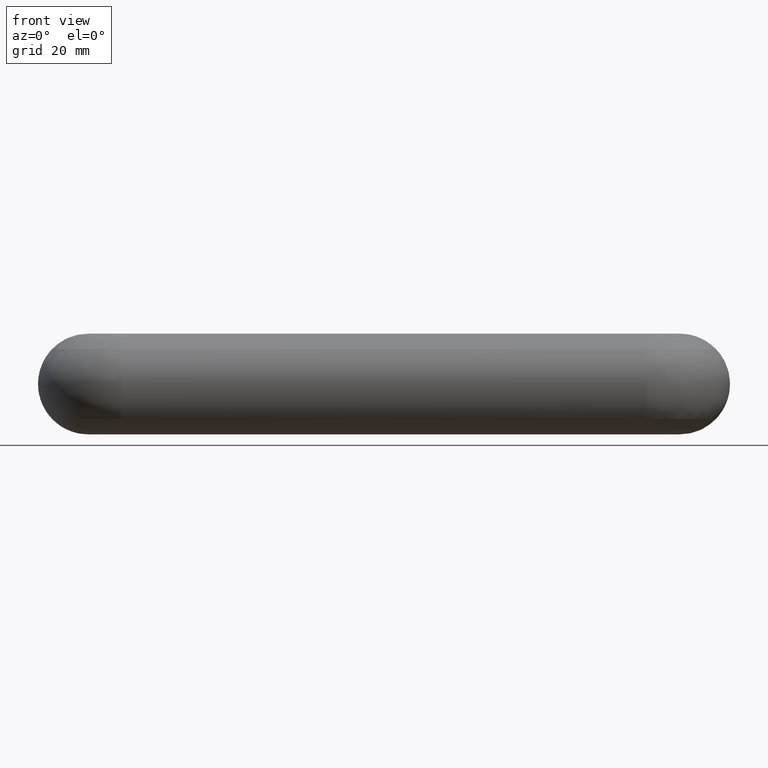
[diagram: clean part render]
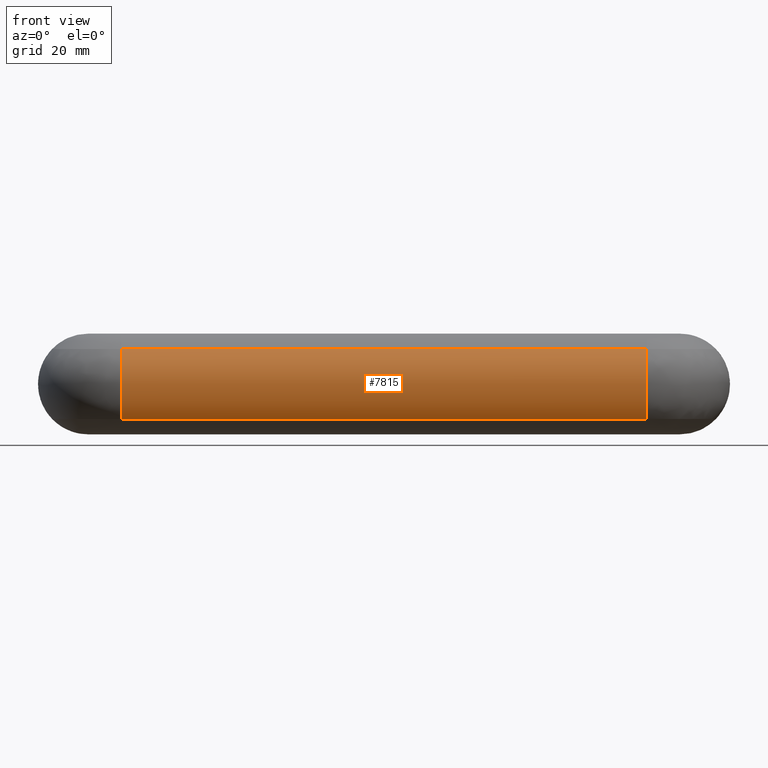
[diagram: same view with one face highlighted and labeled with its STEP entity id]
A machine part, front view. The second image highlights one B-rep face of the part: STEP entity #7815.
In plain terms, the highlighted face is a freeform B-spline surface patch.
Its self-contained STEP definition (entity closure, byte-faithful):
#7508=CARTESIAN_POINT('',(59.999699999999997,-8.0,45.761355820929197));
#7509=VERTEX_POINT('',#7508);
#7525=CARTESIAN_POINT('',(-60.0,-8.0,45.761355820929303));
#7526=VERTEX_POINT('',#7525);
#7527=CARTESIAN_POINT('',(-60.0,-8.0,45.761355820929303));
#7528=CARTESIAN_POINT('',(59.999699999999997,-8.0,45.761355820929197));
#7529=QUASI_UNIFORM_CURVE('',1,(#7527,#7528),.UNSPECIFIED.,.F.,.U.);
#7530=EDGE_CURVE('',#7526,#7509,#7529,.T.);
#7575=CARTESIAN_POINT('',(-60.0,8.0,45.761355820928799));
#7576=VERTEX_POINT('',#7575);
#7592=CARTESIAN_POINT('',(59.999699999999997,8.0,45.761355820929012));
#7593=VERTEX_POINT('',#7592);
#7594=CARTESIAN_POINT('',(-60.0,8.0,45.761355820928799));
#7595=CARTESIAN_POINT('',(59.999699999999997,8.0,45.761355820929012));
#7596=QUASI_UNIFORM_CURVE('',1,(#7594,#7595),.UNSPECIFIED.,.F.,.U.);
#7597=EDGE_CURVE('',#7576,#7593,#7596,.T.);
#7684=CARTESIAN_POINT('',(59.999699999999997,-8.0,45.761355820929197));
#7685=CARTESIAN_POINT('',(59.999699999999883,-7.271968794254613,46.466866819135589));
#7686=CARTESIAN_POINT('',(59.999700000000033,-6.113377591572952,47.323551269598298));
#7687=CARTESIAN_POINT('',(59.999699999999997,-4.161103633078403,48.268492238834199));
#7688=CARTESIAN_POINT('',(59.999700000000352,-2.436582228806805,48.802966050935872));
#7689=CARTESIAN_POINT('',(59.999699999999343,-0.646132955954924,49.019138806666767));
#7690=CARTESIAN_POINT('',(59.999700000000850,1.061029685110179,48.988378395529132));
#7691=CARTESIAN_POINT('',(59.999699999999670,2.614099919913107,48.743678812118233));
#7692=CARTESIAN_POINT('',(59.999699999999997,4.463324921342064,48.158458177964100));
#7693=CARTESIAN_POINT('',(59.999700000000303,6.275950139016420,47.226690908230857));
#7694=CARTESIAN_POINT('',(59.999699999999699,7.470408209223957,46.274285504434850));
#7695=CARTESIAN_POINT('',(59.999699999999997,8.0,45.761355820929012));
#7696=B_SPLINE_CURVE_WITH_KNOTS('',3,(#7684,#7685,#7686,#7687,#7688,#7689,#7690,#7691,#7692,#7693,#7694,#7695),.UNSPECIFIED.,.F.,.U.,(4,1,1,1,1,1,1,1,1,4),(0.000000155091406,3.041243191490747,4.285418916107002,6.497262160218169,8.432652592924731,9.676698107975581,11.612095076615811,13.132735864761299,15.482820373881671,17.694635429807992),.UNSPECIFIED.);
#7697=EDGE_CURVE('',#7509,#7593,#7696,.T.);
#7777=CARTESIAN_POINT('',(-60.0,8.0,45.761355820928799));
#7778=CARTESIAN_POINT('',(-60.000000000000007,7.470414412959556,46.274304842974701));
#7779=CARTESIAN_POINT('',(-60.0,6.348310684048474,47.168902127086788));
#7780=CARTESIAN_POINT('',(-60.000000000000021,4.221999829808593,48.294673680852398));
#7781=CARTESIAN_POINT('',(-60.000000000000050,2.028883444628129,48.902757833882063));
#7782=CARTESIAN_POINT('',(-59.999999999999979,-0.323270096470753,49.058302843510333));
#7783=CARTESIAN_POINT('',(-60.000000000000092,-2.532176202508151,48.805096430923982));
#7784=CARTESIAN_POINT('',(-59.999999999999851,-4.596882654959634,48.110338356791701));
#7785=CARTESIAN_POINT('',(-60.000000000000291,-6.456885297132960,47.082302770855676));
#7786=CARTESIAN_POINT('',(-59.999999999999837,-7.470421459107111,46.274306050541838));
#7787=CARTESIAN_POINT('',(-60.0,-8.0,45.761355820929303));
#7788=B_SPLINE_CURVE_WITH_KNOTS('',3,(#7777,#7778,#7779,#7780,#7781,#7782,#7783,#7784,#7785,#7786,#7787),.UNSPECIFIED.,.F.,.U.,(4,1,1,1,1,1,1,1,4),(0.000000155066939,2.211829240407496,4.285418916088348,7.188467384762255,8.985509265779662,11.335595173351351,13.823935251959590,15.482820373879200,17.694635429808180),.UNSPECIFIED.);
#7789=EDGE_CURVE('',#7576,#7526,#7788,.T.);
#7795=CARTESIAN_POINT('',(-62.999992500000012,-8.330853537800637,45.427602369677622));
#7796=CARTESIAN_POINT('',(63.074692312500012,-8.330853537800637,45.427602369677622));
#7797=CARTESIAN_POINT('',(-62.999992500000019,0.238593641579692,54.432949260485110));
#7798=CARTESIAN_POINT('',(63.074692312500005,0.238593641579692,54.432949260485110));
#7799=CARTESIAN_POINT('',(-62.999992500000005,8.550909485336421,45.189729967533303));
#7800=CARTESIAN_POINT('',(63.074692312500005,8.550909485336421,45.189729967533303));
#7808=(BOUNDED_SURFACE()B_SPLINE_SURFACE(1,2,((#7795,#7797,#7799),(#7796,#7798,#7800)),.UNSPECIFIED.,.F.,.F.,.U.)B_SPLINE_SURFACE_WITH_KNOTS((2,2),(3,3),(0.0,126.074684812500000),(0.0,20.110296753306621),.UNSPECIFIED.)GEOMETRIC_REPRESENTATION_ITEM()RATIONAL_B_SPLINE_SURFACE(((1.0,0.677674249986143,0.995858691470504),(1.0,0.677674249986143,0.995858691470504)))REPRESENTATION_ITEM('')SURFACE());
#7809=ORIENTED_EDGE('',*,*,#7789,.T.);
#7810=ORIENTED_EDGE('',*,*,#7530,.T.);
#7811=ORIENTED_EDGE('',*,*,#7697,.T.);
#7812=ORIENTED_EDGE('',*,*,#7597,.F.);
#7813=EDGE_LOOP('',(#7809,#7810,#7811,#7812));
#7814=FACE_OUTER_BOUND('',#7813,.T.);
#7815=ADVANCED_FACE('',(#7814),#7808,.T.);